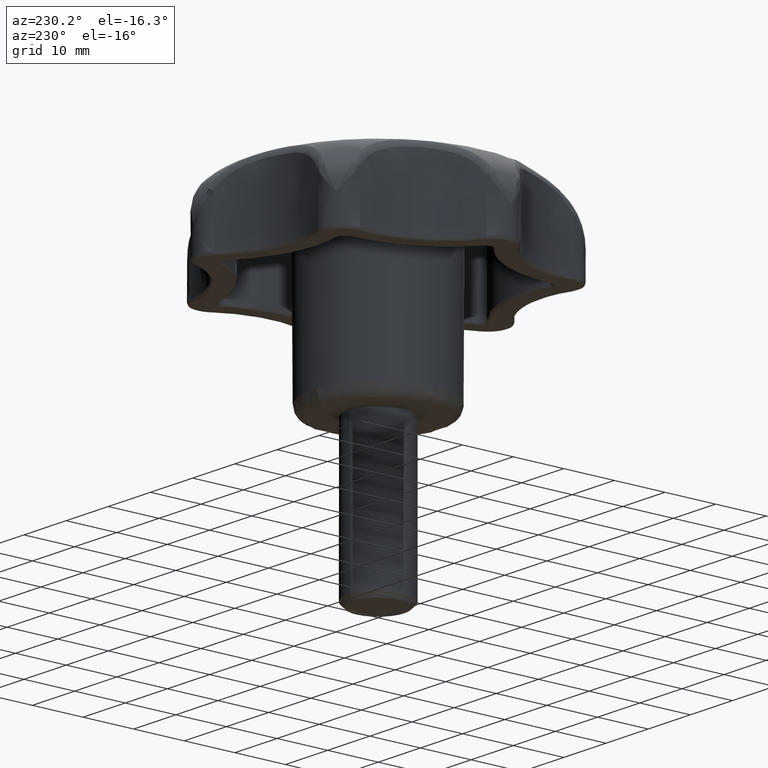
[diagram: clean part render]
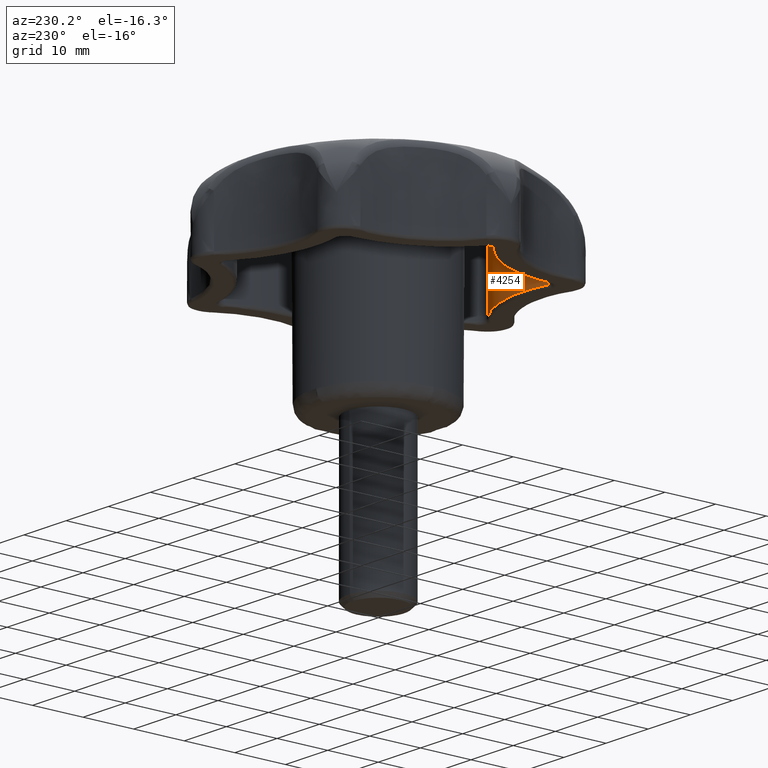
[diagram: same view with one face highlighted and labeled with its STEP entity id]
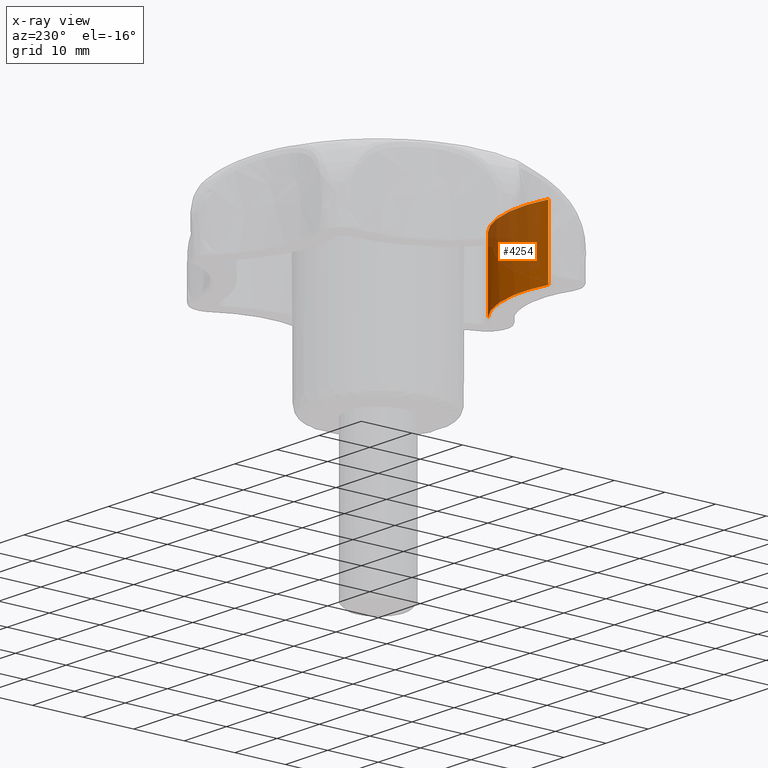
[diagram: x-ray of the same camera — body ghosted, the highlighted face saturated]
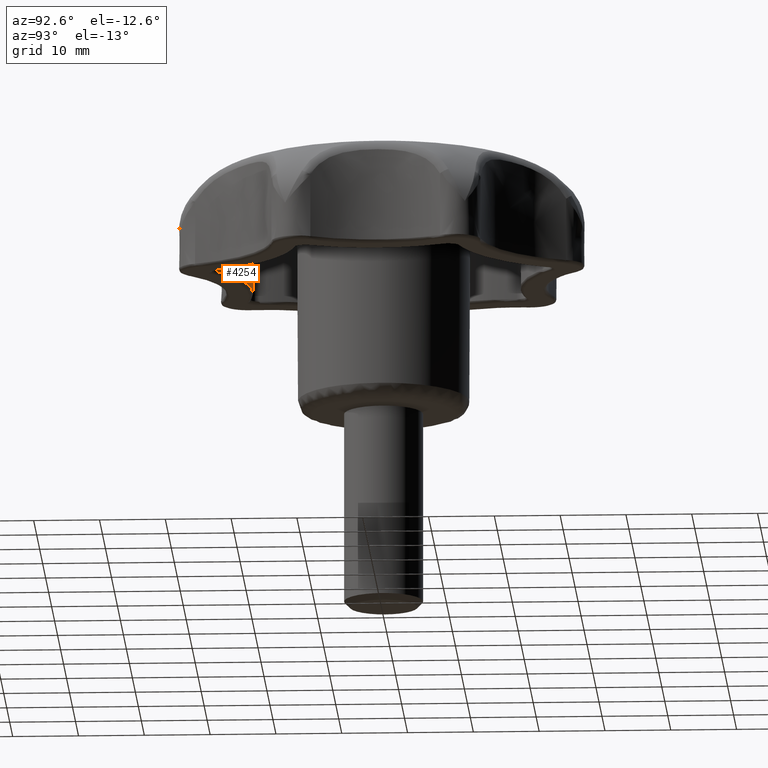
[diagram: same view with one face highlighted and labeled with its STEP entity id]
A machine part, auxiliary view. The second image highlights one B-rep face of the part: STEP entity #4254.
The next image is the same camera in x-ray: the body ghosted, the highlighted face saturated — about 55% of this face is hidden behind the body in this view.
A second angle (auxiliary view) of the same face is appended — the face is thin or edge-on in the first view.
In plain terms, the highlighted face is a freeform B-spline surface patch.
Its self-contained STEP definition (entity closure, byte-faithful):
#2611=CARTESIAN_POINT('',(-15.193586375749200,-20.945540759110958,21.500000000000000));
#2612=VERTEX_POINT('',#2611);
#2745=CARTESIAN_POINT('',(4.601017605025820,-25.463530358067899,21.500000000000000));
#2746=VERTEX_POINT('',#2745);
#2776=CARTESIAN_POINT('',(4.601017605025820,-25.463530358067899,21.500000000000000));
#2777=CARTESIAN_POINT('',(-4.185102419384341,-18.336129714499208,21.500000000000007));
#2778=CARTESIAN_POINT('',(-15.193586375749209,-20.945540759110919,21.500000000000000));
#2786=(BOUNDED_CURVE()B_SPLINE_CURVE(2,(#2776,#2777,#2778),.UNSPECIFIED.,.F.,.U.)CURVE()GEOMETRIC_REPRESENTATION_ITEM()QUASI_UNIFORM_CURVE()RATIONAL_B_SPLINE_CURVE((1.0,0.897318367529791,1.0))REPRESENTATION_ITEM(''));
#2787=EDGE_CURVE('',#2746,#2612,#2786,.T.);
#4210=CARTESIAN_POINT('',(5.250519248142854,-26.010599307338261,35.337205718253998));
#4211=CARTESIAN_POINT('',(5.250519248142854,-26.010599307338261,21.154069857043648));
#4212=CARTESIAN_POINT('',(-4.155716515340776,-17.786226770429884,35.337205718253990));
#4213=CARTESIAN_POINT('',(-4.155716515340776,-17.786226770429884,21.154069857043655));
#4214=CARTESIAN_POINT('',(-16.174718975384927,-21.201070065449976,35.337205718253990));
#4215=CARTESIAN_POINT('',(-16.174718975384927,-21.201070065449976,21.154069857043648));
#4223=(BOUNDED_SURFACE()B_SPLINE_SURFACE(1,2,((#4210,#4212,#4214),(#4211,#4213,#4215)),.UNSPECIFIED.,.F.,.F.,.U.)B_SPLINE_SURFACE_WITH_KNOTS((2,2),(3,3),(0.0,14.183135861210349),(0.0,23.375953986370209),.UNSPECIFIED.)GEOMETRIC_REPRESENTATION_ITEM()RATIONAL_B_SPLINE_SURFACE(((1.0,0.874871321059215,0.991283316149242),(1.0,0.874871321059215,0.991283316149242)))REPRESENTATION_ITEM('')SURFACE());
#4224=CARTESIAN_POINT('',(4.601017605025820,-25.463530358067899,34.999712895857549));
#4225=VERTEX_POINT('',#4224);
#4226=CARTESIAN_POINT('',(4.601017605025820,-25.463530358067899,34.999712895857549));
#4227=CARTESIAN_POINT('',(4.601017605025820,-25.463530358067899,21.500000000000000));
#4228=QUASI_UNIFORM_CURVE('',1,(#4226,#4227),.UNSPECIFIED.,.F.,.U.);
#4229=EDGE_CURVE('',#4225,#2746,#4228,.T.);
#4230=ORIENTED_EDGE('',*,*,#4229,.T.);
#4231=ORIENTED_EDGE('',*,*,#2787,.T.);
#4232=CARTESIAN_POINT('',(-15.193586375749200,-20.945540759110958,34.999712895857549));
#4233=VERTEX_POINT('',#4232);
#4234=CARTESIAN_POINT('',(-15.193586375749200,-20.945540759110958,34.999712895857549));
#4235=CARTESIAN_POINT('',(-15.193586375749200,-20.945540759110958,21.500000000000000));
#4236=QUASI_UNIFORM_CURVE('',1,(#4234,#4235),.UNSPECIFIED.,.F.,.U.);
#4237=EDGE_CURVE('',#4233,#2612,#4236,.T.);
#4238=ORIENTED_EDGE('',*,*,#4237,.F.);
#4239=CARTESIAN_POINT('',(-15.193586375749209,-20.945540759110919,34.999712895857549));
#4240=CARTESIAN_POINT('',(-4.185102419384345,-18.336129714499211,34.999712895857549));
#4241=CARTESIAN_POINT('',(4.601017605025820,-25.463530358067899,34.999712895857549));
#4249=(BOUNDED_CURVE()B_SPLINE_CURVE(2,(#4239,#4240,#4241),.UNSPECIFIED.,.F.,.U.)CURVE()GEOMETRIC_REPRESENTATION_ITEM()QUASI_UNIFORM_CURVE()RATIONAL_B_SPLINE_CURVE((1.0,0.897318367529791,1.0))REPRESENTATION_ITEM(''));
#4250=EDGE_CURVE('',#4233,#4225,#4249,.T.);
#4251=ORIENTED_EDGE('',*,*,#4250,.T.);
#4252=EDGE_LOOP('',(#4230,#4231,#4238,#4251));
#4253=FACE_OUTER_BOUND('',#4252,.T.);
#4254=ADVANCED_FACE('',(#4253),#4223,.T.);